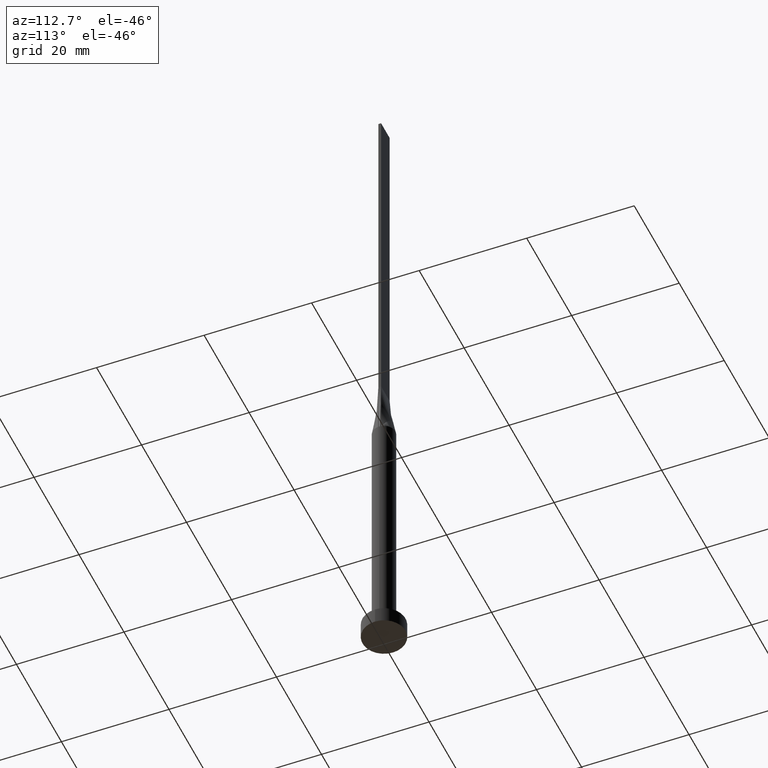
[diagram: clean part render]
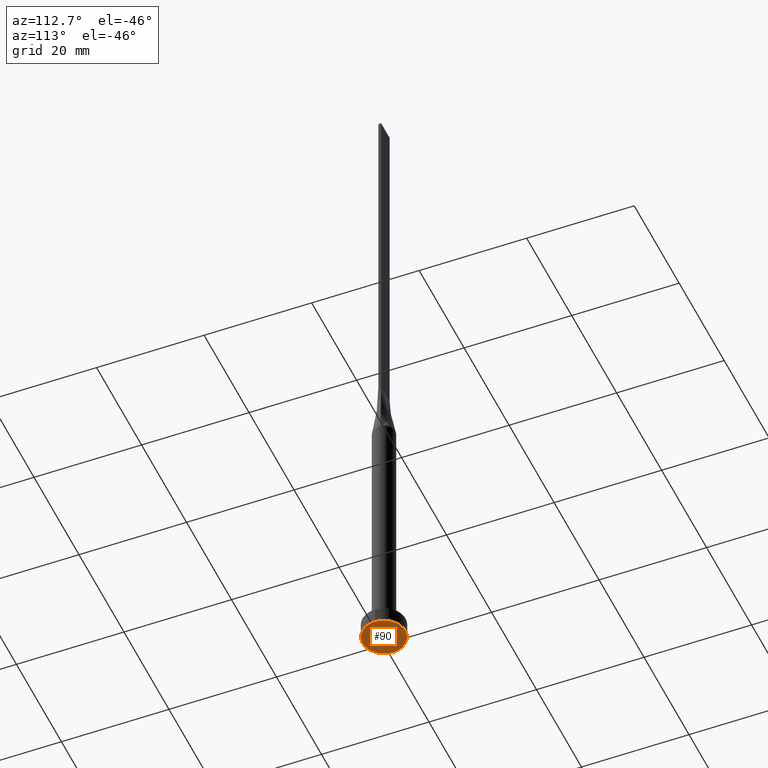
[diagram: same view with one face highlighted and labeled with its STEP entity id]
A machine part, auxiliary view. The second image highlights one B-rep face of the part: STEP entity #90.
In plain terms, the highlighted planar face has unit normal (0, 0, 1).
Its self-contained STEP definition (entity closure, byte-faithful):
#11 = CIRCLE ( 'NONE', #335, 4.000000000000000000 ) ;
#18 = CARTESIAN_POINT ( 'NONE',  ( 0.000000000000000000, 0.000000000000000000, 0.000000000000000000 ) ) ;
#90 = ADVANCED_FACE ( 'NONE', ( #330 ), #340, .F. ) ;
#135 = CARTESIAN_POINT ( 'NONE',  ( -4.000000000000000000, 0.000000000000000000, 0.000000000000000000 ) ) ;
#150 = DIRECTION ( 'NONE',  ( 0.000000000000000000, 0.000000000000000000, 1.000000000000000000 ) ) ;
#153 = CARTESIAN_POINT ( 'NONE',  ( 0.000000000000000000, 0.000000000000000000, 0.000000000000000000 ) ) ;
#155 = DIRECTION ( 'NONE',  ( 0.000000000000000000, 0.000000000000000000, 1.000000000000000000 ) ) ;
#158 = DIRECTION ( 'NONE',  ( 0.000000000000000000, 0.000000000000000000, 1.000000000000000000 ) ) ;
#168 = VERTEX_POINT ( 'NONE', #498 ) ;
#204 = DIRECTION ( 'NONE',  ( 1.000000000000000000, 0.000000000000000000, 0.000000000000000000 ) ) ;
#245 = ORIENTED_EDGE ( 'NONE', *, *, #576, .F. ) ;
#251 = VERTEX_POINT ( 'NONE', #135 ) ;
#287 = ORIENTED_EDGE ( 'NONE', *, *, #481, .F. ) ;
#305 = EDGE_LOOP ( 'NONE', ( #245, #287 ) ) ;
#318 = AXIS2_PLACEMENT_3D ( 'NONE', #153, #155, #505 ) ;
#330 = FACE_OUTER_BOUND ( 'NONE', #305, .T. ) ;
#335 = AXIS2_PLACEMENT_3D ( 'NONE', #18, #158, #204 ) ;
#336 = CIRCLE ( 'NONE', #379, 4.000000000000000000 ) ;
#340 = PLANE ( 'NONE',  #318 ) ;
#367 = DIRECTION ( 'NONE',  ( 1.000000000000000000, 0.000000000000000000, 0.000000000000000000 ) ) ;
#379 = AXIS2_PLACEMENT_3D ( 'NONE', #559, #150, #367 ) ;
#481 = EDGE_CURVE ( 'NONE', #168, #251, #11, .T. ) ;
#498 = CARTESIAN_POINT ( 'NONE',  ( 4.000000000000000000, 4.898587196589412829E-16, 0.000000000000000000 ) ) ;
#505 = DIRECTION ( 'NONE',  ( 1.000000000000000000, 0.000000000000000000, -0.000000000000000000 ) ) ;
#559 = CARTESIAN_POINT ( 'NONE',  ( 0.000000000000000000, 0.000000000000000000, 0.000000000000000000 ) ) ;
#576 = EDGE_CURVE ( 'NONE', #251, #168, #336, .T. ) ;